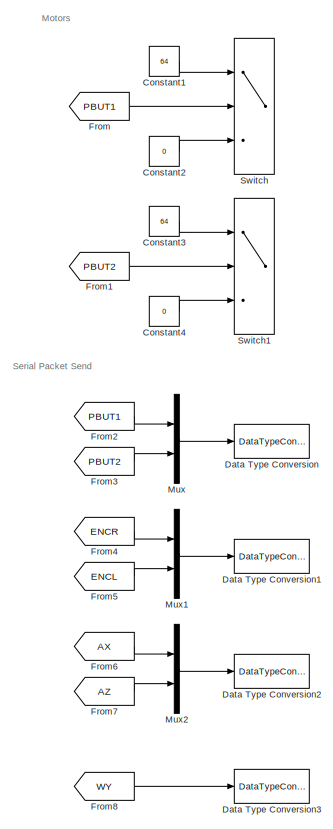
[diagram: root canvas - part 1/3, center side, full height]
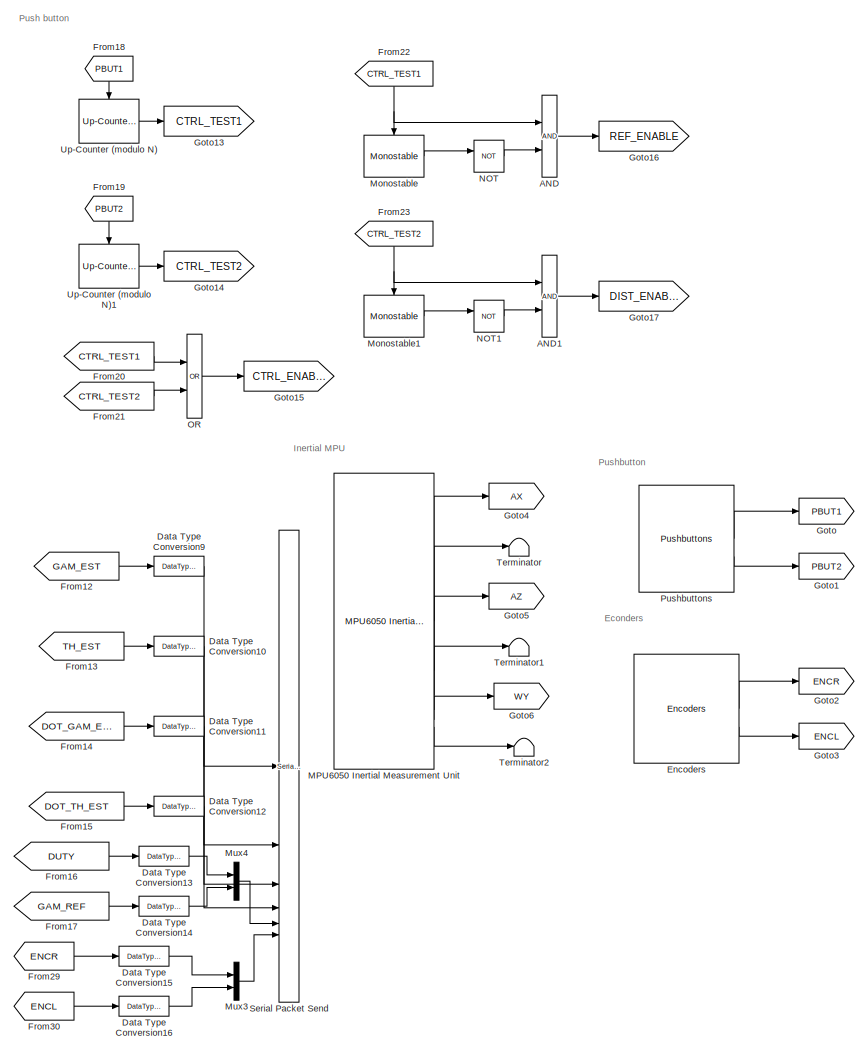
[diagram: root canvas - part 2/3, right side, full height]
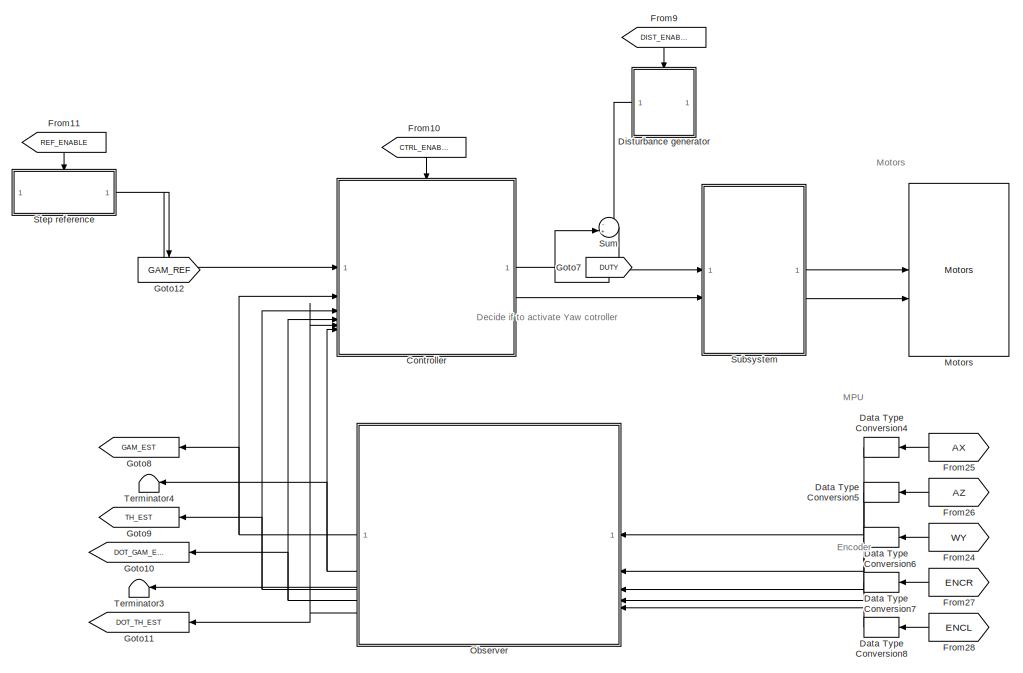
[diagram: root canvas - part 3/3, middle left region]
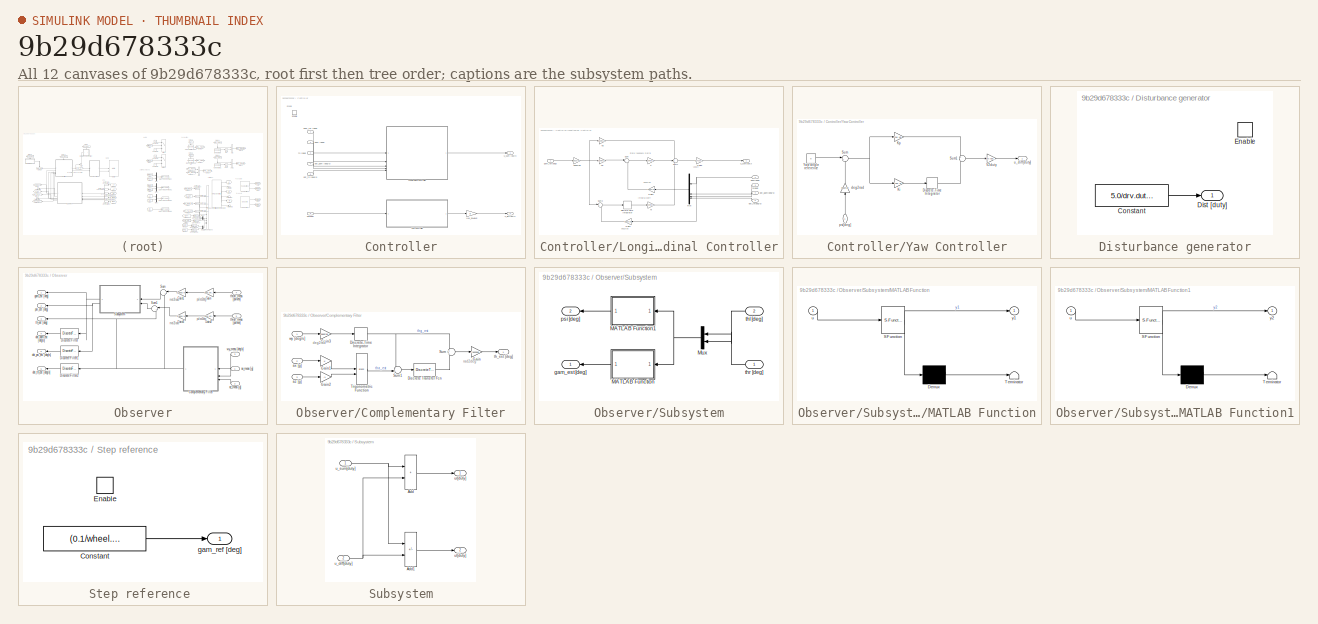
[diagram: thumbnail index - all 12 canvases of the model, root first then tree order]
MODEL slx_9b29d678333c
KIND model
CONFIG AbsTol = auto
CONFIG EnableMultiTasking = on
CONFIG FixedStep = 0.01
CONFIG MaxStep = auto
CONFIG MinStep = auto
CONFIG RelTol = 1e-3
CONFIG SampleTimeConstraint = Unconstrained
CONFIG SolverName = FixedStepDiscrete
CONFIG StartTime = 0.0
CONFIG StopTime = 60
BLOCK [Logic] AND
  AllPortsSameDT = off
  IconShape = distinctive
  OutDataTypeStr = boolean
BLOCK [Logic] AND1
  AllPortsSameDT = off
  IconShape = distinctive
  OutDataTypeStr = boolean
BLOCK [Constant] Constant1
  Commented = on
  Value = 64
BLOCK [Constant] Constant2
  Commented = on
  Value = 0
BLOCK [Constant] Constant3
  Commented = on
  Value = 64
BLOCK [Constant] Constant4
  Commented = on
  Value = 0
BLOCK [SubSystem] Controller
BLOCK [EnablePort] Controller/Enable
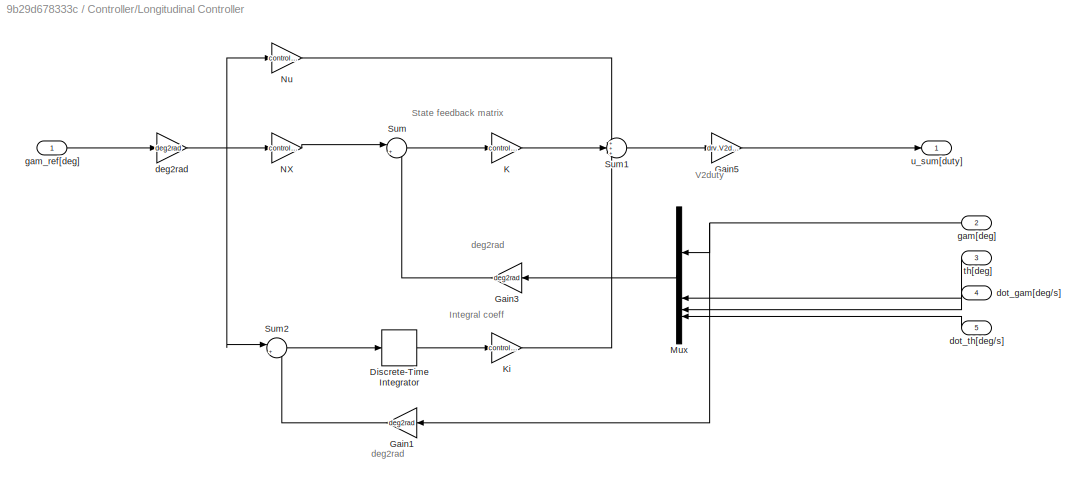
BLOCK [SubSystem] Controller/Longitudinal Controller
BLOCK [DiscreteIntegrator] Controller/Longitudinal Controller/Discrete-Time Integrator
  ICPrevOutput = DiscIntNeverNeededParam
  ICPrevScaledInput = DiscIntNeverNeededParam
  InitialConditionSetting = Auto
  IntegratorMethod = Accumulation: Forward Euler
  SampleTime = -1
BLOCK [Gain] Controller/Longitudinal Controller/Gain1
  Gain = deg2rad
  NameLocation = top
BLOCK [Gain] Controller/Longitudinal Controller/Gain3
  Gain = deg2rad
  NameLocation = top
BLOCK [Gain] Controller/Longitudinal Controller/Gain5
  Gain = drv.V2duty
BLOCK [Gain] Controller/Longitudinal Controller/K
  Gain = controller.K
  Multiplication = Matrix(K*u)
BLOCK [Gain] Controller/Longitudinal Controller/Ki
  Gain = controller.Ki
BLOCK [Mux] Controller/Longitudinal Controller/Mux
  DisplayOption = bar
BLOCK [Gain] Controller/Longitudinal Controller/NX
  Gain = controller.Nx
BLOCK [Gain] Controller/Longitudinal Controller/Nu
  Gain = controller.Nu
BLOCK [Sum] Controller/Longitudinal Controller/Sum
  Inputs = |+-
BLOCK [Sum] Controller/Longitudinal Controller/Sum1
  Inputs = +++
BLOCK [Sum] Controller/Longitudinal Controller/Sum2
  Inputs = |+-
BLOCK [Gain] Controller/Longitudinal Controller/deg2rad
  Gain = deg2rad
BLOCK [Inport] Controller/Longitudinal Controller/dot_gam[deg//s]
  Port = 4
BLOCK [Inport] Controller/Longitudinal Controller/dot_th[deg//s]
  Port = 5
BLOCK [Inport] Controller/Longitudinal Controller/gam[deg]
  Port = 2
BLOCK [Inport] Controller/Longitudinal Controller/gam_ref[deg]
BLOCK [Inport] Controller/Longitudinal Controller/th[deg]
  Port = 3
BLOCK [Outport] Controller/Longitudinal Controller/u_sum[duty]
BLOCK [Gain] Controller/YAW_ENABLE
  Gain = 0
BLOCK [SubSystem] Controller/Yaw Controller
BLOCK [DiscreteIntegrator] Controller/Yaw Controller/Discrete-Time Integrator
  ICPrevOutput = DiscIntNeverNeededParam
  ICPrevScaledInput = DiscIntNeverNeededParam
  InitialConditionSetting = Auto
  SampleTime = Ts
BLOCK [Gain] Controller/Yaw Controller/Ki
  Gain = yaw.Ki
BLOCK [Gain] Controller/Yaw Controller/Kp
  Gain = yaw.Kp
BLOCK [Sum] Controller/Yaw Controller/Sum
  Inputs = |+-
BLOCK [Sum] Controller/Yaw Controller/Sum1
  Inputs = +|+
BLOCK [Gain] Controller/Yaw Controller/V2duty
  Gain = drv.V2duty
BLOCK [Constant] Controller/Yaw Controller/Yaw angle reference
  Value = 0
BLOCK [Gain] Controller/Yaw Controller/deg2rad
  Gain = deg2rad
  NameLocation = right
BLOCK [Inport] Controller/Yaw Controller/psi[deg]
  NameLocation = right
BLOCK [Outport] Controller/Yaw Controller/u_diff[duty]
BLOCK [Inport] Controller/dot_gam [deg//s]
  NameLocation = top
  Port = 4
BLOCK [Inport] Controller/dot_th [deg//s]
  NameLocation = top
  Port = 5
BLOCK [Inport] Controller/gam [deg]
  NameLocation = top
  Port = 2
BLOCK [Inport] Controller/gam_ref [deg]
BLOCK [Inport] Controller/psi[deg]
  Port = 6
BLOCK [Inport] Controller/th [deg]
  NameLocation = top
  Port = 3
BLOCK [Outport] Controller/u_diff[duty]
  InitialOutput = 0
  Port = 2
BLOCK [Outport] Controller/u_sum [duty]
  InitialOutput = 0
BLOCK [DataTypeConversion] Data Type Conversion
  Commented = on
  OutDataTypeStr = uint8
  RndMeth = Floor
  SaturateOnIntegerOverflow = off
BLOCK [DataTypeConversion] Data Type Conversion1
  Commented = on
  OutDataTypeStr = int32
  RndMeth = Floor
  SaturateOnIntegerOverflow = off
BLOCK [DataTypeConversion] Data Type Conversion10
  OutDataTypeStr = single
  RndMeth = Floor
  SaturateOnIntegerOverflow = off
BLOCK [DataTypeConversion] Data Type Conversion11
  OutDataTypeStr = single
  RndMeth = Floor
  SaturateOnIntegerOverflow = off
BLOCK [DataTypeConversion] Data Type Conversion12
  OutDataTypeStr = single
  RndMeth = Floor
  SaturateOnIntegerOverflow = off
BLOCK [DataTypeConversion] Data Type Conversion13
  OutDataTypeStr = single
  RndMeth = Floor
  SaturateOnIntegerOverflow = off
BLOCK [DataTypeConversion] Data Type Conversion14
  OutDataTypeStr = single
  RndMeth = Floor
  SaturateOnIntegerOverflow = off
BLOCK [DataTypeConversion] Data Type Conversion15
  OutDataTypeStr = single
  RndMeth = Floor
  SaturateOnIntegerOverflow = off
BLOCK [DataTypeConversion] Data Type Conversion16
  OutDataTypeStr = single
  RndMeth = Floor
  SaturateOnIntegerOverflow = off
BLOCK [DataTypeConversion] Data Type Conversion2
  Commented = on
  OutDataTypeStr = single
  RndMeth = Floor
  SaturateOnIntegerOverflow = off
BLOCK [DataTypeConversion] Data Type Conversion3
  Commented = on
  OutDataTypeStr = single
  RndMeth = Floor
  SaturateOnIntegerOverflow = off
BLOCK [DataTypeConversion] Data Type Conversion4
  NameLocation = top
  OutDataTypeStr = double
  RndMeth = Floor
  SaturateOnIntegerOverflow = off
BLOCK [DataTypeConversion] Data Type Conversion5
  NameLocation = top
  OutDataTypeStr = double
  RndMeth = Floor
  SaturateOnIntegerOverflow = off
BLOCK [DataTypeConversion] Data Type Conversion6
  NameLocation = top
  OutDataTypeStr = double
  RndMeth = Floor
  SaturateOnIntegerOverflow = off
BLOCK [DataTypeConversion] Data Type Conversion7
  NameLocation = top
  OutDataTypeStr = double
  RndMeth = Floor
  SaturateOnIntegerOverflow = off
BLOCK [DataTypeConversion] Data Type Conversion8
  NameLocation = top
  OutDataTypeStr = double
  RndMeth = Floor
  SaturateOnIntegerOverflow = off
BLOCK [DataTypeConversion] Data Type Conversion9
  OutDataTypeStr = single
  RndMeth = Floor
  SaturateOnIntegerOverflow = off
BLOCK [SubSystem] Disturbance generator
BLOCK [Constant] Disturbance generator/Constant
  Value = 5.0/drv.duty2V
BLOCK [Outport] Disturbance generator/Dist [duty]
  InitialOutput = 0
BLOCK [EnablePort] Disturbance generator/Enable
BLOCK [Reference] Encoders  REF=BalRobTbx_baselib/Inputs/Encoders
  SourceBlock = BalRobTbx_baselib/Inputs/Encoders
  SourceProductName = Balancing Robot Toolbox
  SourceType = Encoders
BLOCK [From] From
  Commented = on
  GotoTag = PBUT1
BLOCK [From] From1
  Commented = on
  GotoTag = PBUT2
BLOCK [From] From10
  GotoTag = CTRL_ENABLE
  NameLocation = left
BLOCK [From] From11
  GotoTag = REF_ENABLE
  NameLocation = left
BLOCK [From] From12
  GotoTag = GAM_EST
BLOCK [From] From13
  GotoTag = TH_EST
BLOCK [From] From14
  GotoTag = DOT_GAM_EST
BLOCK [From] From15
  GotoTag = DOT_TH_EST
BLOCK [From] From16
  GotoTag = DUTY
BLOCK [From] From17
  GotoTag = GAM_REF
BLOCK [From] From18
  GotoTag = PBUT1
  NameLocation = left
BLOCK [From] From19
  GotoTag = PBUT2
  NameLocation = left
BLOCK [From] From2
  Commented = on
  GotoTag = PBUT1
BLOCK [From] From20
  GotoTag = CTRL_TEST1
BLOCK [From] From21
  GotoTag = CTRL_TEST2
BLOCK [From] From22
  GotoTag = CTRL_TEST1
  NameLocation = left
BLOCK [From] From23
  GotoTag = CTRL_TEST2
  NameLocation = left
BLOCK [From] From24
  GotoTag = WY
  NameLocation = top
BLOCK [From] From25
  GotoTag = AX
  NameLocation = top
BLOCK [From] From26
  GotoTag = AZ
  NameLocation = top
BLOCK [From] From27
  GotoTag = ENCR
  NameLocation = top
BLOCK [From] From28
  GotoTag = ENCL
  NameLocation = top
BLOCK [From] From29
  GotoTag = ENCR
BLOCK [From] From3
  Commented = on
  GotoTag = PBUT2
BLOCK [From] From30
  GotoTag = ENCL
BLOCK [From] From4
  Commented = on
  GotoTag = ENCR
BLOCK [From] From5
  Commented = on
  GotoTag = ENCL
BLOCK [From] From6
  Commented = on
  GotoTag = AX
BLOCK [From] From7
  Commented = on
  GotoTag = AZ
BLOCK [From] From8
  Commented = on
  GotoTag = WY
BLOCK [From] From9
  GotoTag = DIST_ENABLE
  NameLocation = left
BLOCK [Goto] Goto
  GotoTag = PBUT1
BLOCK [Goto] Goto1
  GotoTag = PBUT2
BLOCK [Goto] Goto10
  GotoTag = DOT_GAM_EST
  NameLocation = top
BLOCK [Goto] Goto11
  GotoTag = DOT_TH_EST
  NameLocation = top
BLOCK [Goto] Goto12
  GotoTag = GAM_REF
  NameLocation = left
BLOCK [Goto] Goto13
  GotoTag = CTRL_TEST1
BLOCK [Goto] Goto14
  GotoTag = CTRL_TEST2
BLOCK [Goto] Goto15
  GotoTag = CTRL_ENABLE
BLOCK [Goto] Goto16
  GotoTag = REF_ENABLE
BLOCK [Goto] Goto17
  GotoTag = DIST_ENABLE
BLOCK [Goto] Goto2
  GotoTag = ENCR
BLOCK [Goto] Goto3
  GotoTag = ENCL
BLOCK [Goto] Goto4
  GotoTag = AX
BLOCK [Goto] Goto5
  GotoTag = AZ
BLOCK [Goto] Goto6
  GotoTag = WY
BLOCK [Goto] Goto7
  GotoTag = DUTY
  NameLocation = left
BLOCK [Goto] Goto8
  GotoTag = GAM_EST
  NameLocation = top
BLOCK [Goto] Goto9
  GotoTag = TH_EST
  NameLocation = top
BLOCK [Reference] MPU6050 Inertial Measurement Unit  REF=BalRobTbx_baselib/Inputs/MPU6050
Inertial Measurement Unit
  SourceBlock = BalRobTbx_baselib/Inputs/MPU6050\nInertial Measurement Unit
  SourceProductName = Balancing Robot Toolbox
  SourceType = MPU6050
BLOCK [Reference] Monostable  REF=BalRobTbx_baselib/Utilities/Monostable
  SourceBlock = BalRobTbx_baselib/Utilities/Monostable
  SourceProductName = Balancing Robot Toolbox
BLOCK [Reference] Monostable1  REF=BalRobTbx_baselib/Utilities/Monostable
  SourceBlock = BalRobTbx_baselib/Utilities/Monostable
  SourceProductName = Balancing Robot Toolbox
BLOCK [Reference] Motors  REF=BalRobTbx_baselib/Outputs/Motors
  SourceBlock = BalRobTbx_baselib/Outputs/Motors
  SourceProductName = Balancing Robot Toolbox
  SourceType = Motors
BLOCK [Mux] Mux
  Commented = on
  DisplayOption = bar
  Inputs = 2
BLOCK [Mux] Mux1
  Commented = on
  DisplayOption = bar
  Inputs = 2
BLOCK [Mux] Mux2
  Commented = on
  DisplayOption = bar
  Inputs = 2
BLOCK [Mux] Mux3
  DisplayOption = bar
  Inputs = 2
BLOCK [Mux] Mux4
  DisplayOption = bar
  Inputs = 2
BLOCK [Logic] NOT
  AllPortsSameDT = off
  IconShape = distinctive
  Operator = NOT
  OutDataTypeStr = boolean
BLOCK [Logic] NOT1
  AllPortsSameDT = off
  IconShape = distinctive
  Operator = NOT
  OutDataTypeStr = boolean
BLOCK [Logic] OR
  AllPortsSameDT = off
  IconShape = distinctive
  Operator = OR
  OutDataTypeStr = boolean
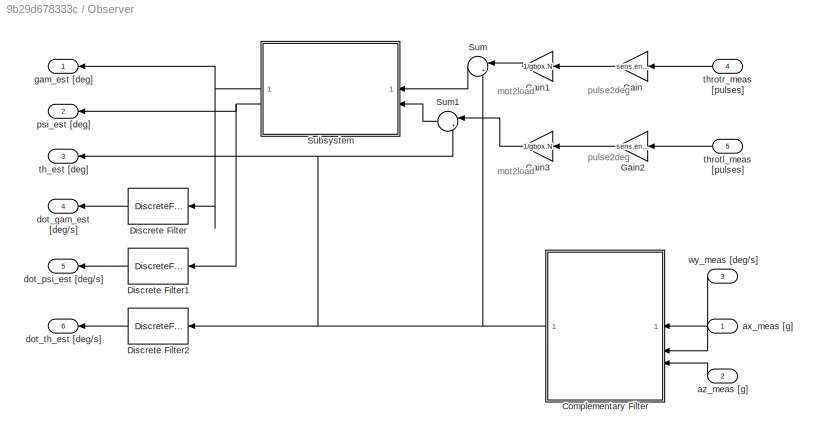
BLOCK [SubSystem] Observer
BLOCK [SubSystem] Observer/Complementary Filter
BLOCK [DiscreteTransferFcn] Observer/Complementary Filter/Discrete Transfer Fcn
  Denominator = filt.Hdenom
  InputPortMap = u0
  Numerator = filt.Hnum
  SampleTime = Ts
BLOCK [DiscreteIntegrator] Observer/Complementary Filter/Discrete-Time Integrator
  ICPrevOutput = DiscIntNeverNeededParam
  ICPrevScaledInput = DiscIntNeverNeededParam
  InitialConditionSetting = Auto
  SampleTime = Ts
BLOCK [Gain] Observer/Complementary Filter/Gain
  Gain = rad2deg
BLOCK [Gain] Observer/Complementary Filter/Gain1
BLOCK [Gain] Observer/Complementary Filter/Gain2
  Gain = -1
BLOCK [Gain] Observer/Complementary Filter/Gain3
  Gain = deg2rad
BLOCK [Sum] Observer/Complementary Filter/Sum
  Inputs = +|+
BLOCK [Sum] Observer/Complementary Filter/Sum1
  Inputs = -+|
BLOCK [Trigonometry] Observer/Complementary Filter/Trigonometric Function
  Operator = atan2
BLOCK [Inport] Observer/Complementary Filter/ax [g]
  Port = 2
BLOCK [Inport] Observer/Complementary Filter/az [g]
  Port = 3
BLOCK [Outport] Observer/Complementary Filter/th_est [deg]
BLOCK [Inport] Observer/Complementary Filter/wy [deg//s]
BLOCK [DiscreteFilter] Observer/Discrete Filter
  Denominator = [3*Ts]
  InputPortMap = u0
  Numerator = [1 0 0 -1]
  SampleTime = Ts
BLOCK [DiscreteFilter] Observer/Discrete Filter1
  Denominator = [3*Ts]
  InputPortMap = u0
  Numerator = [1 0 0 -1]
  SampleTime = Ts
BLOCK [DiscreteFilter] Observer/Discrete Filter2
  Denominator = [3*Ts]
  InputPortMap = u0
  Numerator = [1 0 0 -1]
  SampleTime = Ts
BLOCK [Gain] Observer/Gain
  Gain = sens.enc.pulse2deg
BLOCK [Gain] Observer/Gain1
  Gain = 1/gbox.N
BLOCK [Gain] Observer/Gain2
  Gain = sens.enc.pulse2deg
BLOCK [Gain] Observer/Gain3
  Gain = 1/gbox.N
BLOCK [SubSystem] Observer/Subsystem
BLOCK [SubSystem] Observer/Subsystem/MATLAB Function
  ErrorFcn = Stateflow.Translate.translate
  NameLocation = top
  PermitHierarchicalResolution = ExplicitOnly
  SFBlockType = MATLAB Function
  TreatAsAtomicUnit = on
BLOCK [Demux] Observer/Subsystem/MATLAB Function/ Demux 
  Outputs = 1
BLOCK [S-Function] Observer/Subsystem/MATLAB Function/ SFunction 
  EnableBusSupport = on
  FunctionName = sf_sfun
  PortCounts = [1 2]
  SFcnIsStateOwnerBlock = off
  SFunctionDeploymentMode = off
  Tag = Stateflow S-Function 2
BLOCK [Terminator] Observer/Subsystem/MATLAB Function/ Terminator 
BLOCK [Inport] Observer/Subsystem/MATLAB Function/u
BLOCK [Outport] Observer/Subsystem/MATLAB Function/y1
BLOCK [SubSystem] Observer/Subsystem/MATLAB Function1
  ErrorFcn = Stateflow.Translate.translate
  NameLocation = top
  PermitHierarchicalResolution = ExplicitOnly
  SFBlockType = MATLAB Function
  TreatAsAtomicUnit = on
BLOCK [Demux] Observer/Subsystem/MATLAB Function1/ Demux 
  Outputs = 1
BLOCK [S-Function] Observer/Subsystem/MATLAB Function1/ SFunction 
  EnableBusSupport = on
  FunctionName = sf_sfun
  PortCounts = [1 2]
  SFcnIsStateOwnerBlock = off
  SFunctionDeploymentMode = off
  Tag = Stateflow S-Function 1
BLOCK [Terminator] Observer/Subsystem/MATLAB Function1/ Terminator 
BLOCK [Inport] Observer/Subsystem/MATLAB Function1/u
BLOCK [Outport] Observer/Subsystem/MATLAB Function1/y2
BLOCK [Mux] Observer/Subsystem/Mux
  DisplayOption = bar
  Inputs = 2
  NameLocation = top
BLOCK [Outport] Observer/Subsystem/gam_est [deg]
  NameLocation = top
BLOCK [Outport] Observer/Subsystem/psi [deg]
  NameLocation = top
  Port = 2
BLOCK [Inport] Observer/Subsystem/thl [deg]
  NameLocation = top
  Port = 2
BLOCK [Inport] Observer/Subsystem/thr [deg]
  NameLocation = top
BLOCK [Sum] Observer/Sum
  Inputs = |++
BLOCK [Sum] Observer/Sum1
  Inputs = |++
BLOCK [Inport] Observer/ax_meas [g]
BLOCK [Inport] Observer/az_meas [g]
  Port = 2
BLOCK [Outport] Observer/dot_gam_est [deg//s]
  Port = 4
BLOCK [Outport] Observer/dot_psi_est [deg//s]
  Port = 5
BLOCK [Outport] Observer/dot_th_est [deg//s]
  Port = 6
BLOCK [Outport] Observer/gam_est [deg]
BLOCK [Outport] Observer/psi_est [deg]
  Port = 2
BLOCK [Outport] Observer/th_est [deg]
  Port = 3
BLOCK [Inport] Observer/throtl_meas [pulses]
  Port = 5
BLOCK [Inport] Observer/throtr_meas [pulses]
  Port = 4
BLOCK [Inport] Observer/wy_meas [deg//s]
  Port = 3
BLOCK [Reference] Pushbuttons  REF=BalRobTbx_baselib/Inputs/Pushbuttons
  SourceBlock = BalRobTbx_baselib/Inputs/Pushbuttons
  SourceProductName = Balancing Robot Toolbox
  SourceType = Pushbuttons
BLOCK [Reference] Serial Packet Send  REF=BalRobTbx_baselib/Communication/Serial Packet Send
  SourceBlock = BalRobTbx_baselib/Communication/Serial Packet Send
  SourceProductName = Balancing Robot Toolbox
  SourceType = Serial Packet Send
BLOCK [SubSystem] Step reference 
BLOCK [Constant] Step reference /Constant
  Value = (0.1/wheel.r)*rad2deg
BLOCK [EnablePort] Step reference /Enable
BLOCK [Outport] Step reference /gam_ref [deg]
BLOCK [SubSystem] Subsystem
BLOCK [Sum] Subsystem/Add
  IconShape = rectangular
BLOCK [Sum] Subsystem/Add1
  IconShape = rectangular
  Inputs = +-
BLOCK [Inport] Subsystem/u_diff[duty]
  Port = 2
BLOCK [Inport] Subsystem/u_sum[duty]
BLOCK [Outport] Subsystem/ul[duty]
  Port = 2
BLOCK [Outport] Subsystem/ur[duty]
BLOCK [Sum] Sum
  Inputs = -+|
BLOCK [Switch] Switch
  Commented = on
  Criteria = u2 > Threshold
  InputSameDT = off
  SaturateOnIntegerOverflow = off
BLOCK [Switch] Switch1
  Commented = on
  Criteria = u2 > Threshold
  InputSameDT = off
  SaturateOnIntegerOverflow = off
BLOCK [Terminator] Terminator
BLOCK [Terminator] Terminator1
BLOCK [Terminator] Terminator2
BLOCK [Terminator] Terminator3
  NameLocation = top
BLOCK [Terminator] Terminator4
  NameLocation = top
BLOCK [Reference] Up-Counter (modulo N)  REF=BalRobTbx_baselib/Utilities/Up-Counter
(modulo N)
  SourceBlock = BalRobTbx_baselib/Utilities/Up-Counter\n(modulo N)
  SourceProductName = Balancing Robot Toolbox
BLOCK [Reference] Up-Counter (modulo N)1  REF=BalRobTbx_baselib/Utilities/Up-Counter
(modulo N)
  SourceBlock = BalRobTbx_baselib/Utilities/Up-Counter\n(modulo N)
  SourceProductName = Balancing Robot Toolbox
ANNOTATION (root): Decide if to activate Yaw cotroller
ANNOTATION (root): Econders
ANNOTATION (root): Encoder
ANNOTATION (root): Inertial MPU
ANNOTATION (root): MPU
ANNOTATION (root): Motors
ANNOTATION (root): Push button
ANNOTATION (root): Pushbutton
ANNOTATION (root): Serial Packet Send
ANNOTATION Controller: Enable
ANNOTATION Controller/Longitudinal Controller: Integral coeff
ANNOTATION Controller/Longitudinal Controller: State feedback matrix
ANNOTATION Controller/Longitudinal Controller: V2duty
ANNOTATION Controller/Longitudinal Controller: deg2rad
ANNOTATION Observer: mot2load
ANNOTATION Observer: pulse2deg
ANNOTATION Observer/Complementary Filter: deg2rad
ANNOTATION Observer/Complementary Filter: rad2deg
LINE AND1:1 -> Goto17:1
LINE AND:1 -> Goto16:1
LINE Constant1:1 -> Switch:1
LINE Constant2:1 -> Switch:3
LINE Constant3:1 -> Switch1:1
LINE Constant4:1 -> Switch1:3
LINE Controller/Longitudinal Controller/Discrete-Time Integrator:1 -> Controller/Longitudinal Controller/Ki:1
LINE Controller/Longitudinal Controller/Gain1:1 -> Controller/Longitudinal Controller/Sum2:2
LINE Controller/Longitudinal Controller/Gain3:1 -> Controller/Longitudinal Controller/Sum:2
LINE Controller/Longitudinal Controller/Gain5:1 -> Controller/Longitudinal Controller/u_sum[duty]:1
LINE Controller/Longitudinal Controller/K:1 -> Controller/Longitudinal Controller/Sum1:2
LINE Controller/Longitudinal Controller/Ki:1 -> Controller/Longitudinal Controller/Sum1:3
LINE Controller/Longitudinal Controller/Mux:1 -> Controller/Longitudinal Controller/Gain3:1
LINE Controller/Longitudinal Controller/NX:1 -> Controller/Longitudinal Controller/Sum:1
LINE Controller/Longitudinal Controller/Nu:1 -> Controller/Longitudinal Controller/Sum1:1
LINE Controller/Longitudinal Controller/Sum1:1 -> Controller/Longitudinal Controller/Gain5:1
LINE Controller/Longitudinal Controller/Sum2:1 -> Controller/Longitudinal Controller/Discrete-Time Integrator:1
LINE Controller/Longitudinal Controller/Sum:1 -> Controller/Longitudinal Controller/K:1
NET Controller/Longitudinal Controller/deg2rad:1 -> Controller/Longitudinal Controller/NX:1, Controller/Longitudinal Controller/Nu:1, Controller/Longitudinal Controller/Sum2:1
LINE Controller/Longitudinal Controller/dot_gam[deg//s]:1 -> Controller/Longitudinal Controller/Mux:3
LINE Controller/Longitudinal Controller/dot_th[deg//s]:1 -> Controller/Longitudinal Controller/Mux:4
NET Controller/Longitudinal Controller/gam[deg]:1 -> Controller/Longitudinal Controller/Gain1:1, Controller/Longitudinal Controller/Mux:1
LINE Controller/Longitudinal Controller/gam_ref[deg]:1 -> Controller/Longitudinal Controller/deg2rad:1
LINE Controller/Longitudinal Controller/th[deg]:1 -> Controller/Longitudinal Controller/Mux:2
LINE Controller/Longitudinal Controller:1 -> Controller/u_sum [duty]:1
LINE Controller/YAW_ENABLE:1 -> Controller/u_diff[duty]:1
LINE Controller/Yaw Controller/Discrete-Time Integrator:1 -> Controller/Yaw Controller/Sum1:2
LINE Controller/Yaw Controller/Ki:1 -> Controller/Yaw Controller/Discrete-Time Integrator:1
LINE Controller/Yaw Controller/Kp:1 -> Controller/Yaw Controller/Sum1:1
LINE Controller/Yaw Controller/Sum1:1 -> Controller/Yaw Controller/V2duty:1
NET Controller/Yaw Controller/Sum:1 -> Controller/Yaw Controller/Ki:1, Controller/Yaw Controller/Kp:1
LINE Controller/Yaw Controller/V2duty:1 -> Controller/Yaw Controller/u_diff[duty]:1
LINE Controller/Yaw Controller/Yaw angle reference:1 -> Controller/Yaw Controller/Sum:1
LINE Controller/Yaw Controller/deg2rad:1 -> Controller/Yaw Controller/Sum:2
LINE Controller/Yaw Controller/psi[deg]:1 -> Controller/Yaw Controller/deg2rad:1
LINE Controller/Yaw Controller:1 -> Controller/YAW_ENABLE:1
LINE Controller/dot_gam [deg//s]:1 -> Controller/Longitudinal Controller:4
LINE Controller/dot_th [deg//s]:1 -> Controller/Longitudinal Controller:5
LINE Controller/gam [deg]:1 -> Controller/Longitudinal Controller:2
LINE Controller/gam_ref [deg]:1 -> Controller/Longitudinal Controller:1
LINE Controller/psi[deg]:1 -> Controller/Yaw Controller:1
LINE Controller/th [deg]:1 -> Controller/Longitudinal Controller:3
NET Controller:1 -> Goto7:1, Sum:2
LINE Controller:2 -> Subsystem:2
LINE Data Type Conversion10:1 -> Serial Packet Send:2
LINE Data Type Conversion11:1 -> Serial Packet Send:3
LINE Data Type Conversion12:1 -> Serial Packet Send:4
LINE Data Type Conversion13:1 -> Mux4:1
LINE Data Type Conversion14:1 -> Mux4:2
LINE Data Type Conversion15:1 -> Mux3:1
LINE Data Type Conversion16:1 -> Mux3:2
LINE Data Type Conversion4:1 -> Observer:1
LINE Data Type Conversion5:1 -> Observer:2
LINE Data Type Conversion6:1 -> Observer:3
LINE Data Type Conversion7:1 -> Observer:4
LINE Data Type Conversion8:1 -> Observer:5
LINE Data Type Conversion9:1 -> Serial Packet Send:1
LINE Disturbance generator/Constant:1 -> Disturbance generator/Dist [duty]:1
LINE Disturbance generator:1 -> Sum:1
LINE Encoders:1 -> Goto2:1
LINE Encoders:2 -> Goto3:1
LINE From10:1 -> Controller:enable
LINE From11:1 -> Step reference :enable
LINE From12:1 -> Data Type Conversion9:1
LINE From13:1 -> Data Type Conversion10:1
LINE From14:1 -> Data Type Conversion11:1
LINE From15:1 -> Data Type Conversion12:1
LINE From16:1 -> Data Type Conversion13:1
LINE From17:1 -> Data Type Conversion14:1
LINE From18:1 -> Up-Counter (modulo N):trigger
LINE From19:1 -> Up-Counter (modulo N)1:trigger
LINE From1:1 -> Switch1:2
LINE From20:1 -> OR:1
LINE From21:1 -> OR:2
NET From22:1 -> AND:1, Monostable:enable
NET From23:1 -> AND1:1, Monostable1:enable
LINE From24:1 -> Data Type Conversion6:1
LINE From25:1 -> Data Type Conversion4:1
LINE From26:1 -> Data Type Conversion5:1
LINE From27:1 -> Data Type Conversion7:1
LINE From28:1 -> Data Type Conversion8:1
LINE From29:1 -> Data Type Conversion15:1
LINE From2:1 -> Mux:1
LINE From30:1 -> Data Type Conversion16:1
LINE From3:1 -> Mux:2
LINE From4:1 -> Mux1:1
LINE From5:1 -> Mux1:2
LINE From6:1 -> Mux2:1
LINE From7:1 -> Mux2:2
LINE From8:1 -> Data Type Conversion3:1
LINE From9:1 -> Disturbance generator:enable
LINE From:1 -> Switch:2
LINE MPU6050 Inertial Measurement Unit:1 -> Goto4:1
LINE MPU6050 Inertial Measurement Unit:2 -> Terminator:1
LINE MPU6050 Inertial Measurement Unit:3 -> Goto5:1
LINE MPU6050 Inertial Measurement Unit:4 -> Terminator1:1
LINE MPU6050 Inertial Measurement Unit:5 -> Goto6:1
LINE MPU6050 Inertial Measurement Unit:6 -> Terminator2:1
LINE Monostable1:1 -> NOT1:1
LINE Monostable:1 -> NOT:1
LINE Mux1:1 -> Data Type Conversion1:1
LINE Mux2:1 -> Data Type Conversion2:1
LINE Mux3:1 -> Serial Packet Send:6
LINE Mux4:1 -> Serial Packet Send:5
LINE Mux:1 -> Data Type Conversion:1
LINE NOT1:1 -> AND1:2
LINE NOT:1 -> AND:2
LINE OR:1 -> Goto15:1
LINE Observer/Complementary Filter/Discrete Transfer Fcn:1 -> Observer/Complementary Filter/Sum:2
NET Observer/Complementary Filter/Discrete-Time Integrator:1 -> Observer/Complementary Filter/Sum1:1, Observer/Complementary Filter/Sum:1
LINE Observer/Complementary Filter/Gain1:1 -> Observer/Complementary Filter/Trigonometric Function:1
LINE Observer/Complementary Filter/Gain2:1 -> Observer/Complementary Filter/Trigonometric Function:2
LINE Observer/Complementary Filter/Gain3:1 -> Observer/Complementary Filter/Discrete-Time Integrator:1
LINE Observer/Complementary Filter/Gain:1 -> Observer/Complementary Filter/th_est [deg]:1
LINE Observer/Complementary Filter/Sum1:1 -> Observer/Complementary Filter/Discrete Transfer Fcn:1
LINE Observer/Complementary Filter/Sum:1 -> Observer/Complementary Filter/Gain:1
LINE Observer/Complementary Filter/Trigonometric Function:1 -> Observer/Complementary Filter/Sum1:2
LINE Observer/Complementary Filter/ax [g]:1 -> Observer/Complementary Filter/Gain1:1
LINE Observer/Complementary Filter/az [g]:1 -> Observer/Complementary Filter/Gain2:1
LINE Observer/Complementary Filter/wy [deg//s]:1 -> Observer/Complementary Filter/Gain3:1
NET Observer/Complementary Filter:1 -> Observer/Discrete Filter2:1, Observer/Sum1:2, Observer/Sum:2, Observer/th_est [deg]:1
LINE Observer/Discrete Filter1:1 -> Observer/dot_psi_est [deg//s]:1
LINE Observer/Discrete Filter2:1 -> Observer/dot_th_est [deg//s]:1
LINE Observer/Discrete Filter:1 -> Observer/dot_gam_est [deg//s]:1
LINE Observer/Gain1:1 -> Observer/Sum:1
LINE Observer/Gain2:1 -> Observer/Gain3:1
LINE Observer/Gain3:1 -> Observer/Sum1:1
LINE Observer/Gain:1 -> Observer/Gain1:1
LINE Observer/Subsystem/MATLAB Function1:1 -> Observer/Subsystem/psi [deg]:1
LINE Observer/Subsystem/MATLAB Function:1 -> Observer/Subsystem/gam_est [deg]:1
NET Observer/Subsystem/Mux:1 -> Observer/Subsystem/MATLAB Function1:1, Observer/Subsystem/MATLAB Function:1
LINE Observer/Subsystem/thl [deg]:1 -> Observer/Subsystem/Mux:2
LINE Observer/Subsystem/thr [deg]:1 -> Observer/Subsystem/Mux:1
NET Observer/Subsystem:1 -> Observer/Discrete Filter:1, Observer/gam_est [deg]:1
NET Observer/Subsystem:2 -> Observer/Discrete Filter1:1, Observer/psi_est [deg]:1
LINE Observer/Sum1:1 -> Observer/Subsystem:2
LINE Observer/Sum:1 -> Observer/Subsystem:1
LINE Observer/ax_meas [g]:1 -> Observer/Complementary Filter:2
LINE Observer/az_meas [g]:1 -> Observer/Complementary Filter:3
LINE Observer/throtl_meas [pulses]:1 -> Observer/Gain2:1
LINE Observer/throtr_meas [pulses]:1 -> Observer/Gain:1
LINE Observer/wy_meas [deg//s]:1 -> Observer/Complementary Filter:1
NET Observer:1 -> Controller:2, Goto8:1
NET Observer:2 -> Controller:6, Terminator4:1
NET Observer:3 -> Controller:3, Goto9:1
NET Observer:4 -> Controller:4, Goto10:1
LINE Observer:5 -> Terminator3:1
NET Observer:6 -> Controller:5, Goto11:1
LINE Pushbuttons:1 -> Goto:1
LINE Pushbuttons:2 -> Goto1:1
LINE Step reference /Constant:1 -> Step reference /gam_ref [deg]:1
NET Step reference :1 -> Controller:1, Goto12:1
LINE Subsystem/Add1:1 -> Subsystem/ul[duty]:1
LINE Subsystem/Add:1 -> Subsystem/ur[duty]:1
NET Subsystem/u_diff[duty]:1 -> Subsystem/Add1:2, Subsystem/Add:2
NET Subsystem/u_sum[duty]:1 -> Subsystem/Add1:1, Subsystem/Add:1
LINE Subsystem:1 -> Motors:1
LINE Subsystem:2 -> Motors:2
LINE Sum:1 -> Subsystem:1
LINE Up-Counter (modulo N)1:1 -> Goto14:1
LINE Up-Counter (modulo N):1 -> Goto13:1
note: NET lines group one-source signal fan-out (src -> all destinations, sorted); 1:1 wires keep LINE
CHART Observer/Subsystem/MATLAB Function states=1 transitions=1
  STATE_LABEL 'eML_blk_kernel()'
  STATE_LABEL 'SCRIPT:\nfunction y1 = gam_angle(u)\n\ny1=(u(1)+u(2))/2;\n'
CHART Observer/Subsystem/MATLAB Function1 states=1 transitions=1
  STATE_LABEL 'eML_blk_kernel()'
  STATE_LABEL 'SCRIPT:\nfunction y2 = psi_angle(u)\nwheel.r = 0.034;\nwheel.yb=0.1;\nw=2*abs(wheel.yb);\n\ny2 = (wheel.r/w)*(u(1)-u(2));\n'
CHART  states=0 transitions=0
CHART  states=0 transitions=0
